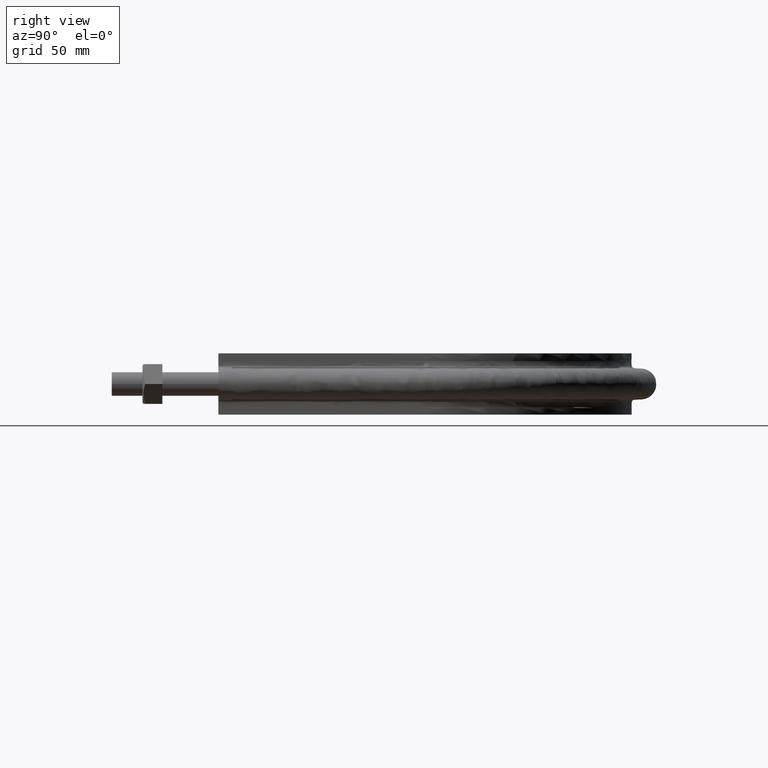
[diagram: clean part render]
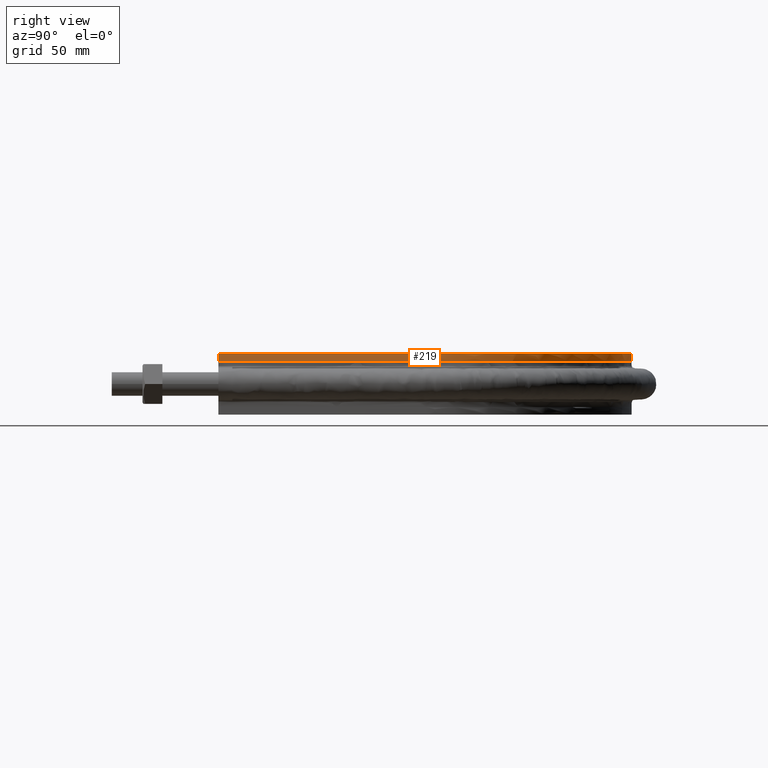
[diagram: same view with one face highlighted and labeled with its STEP entity id]
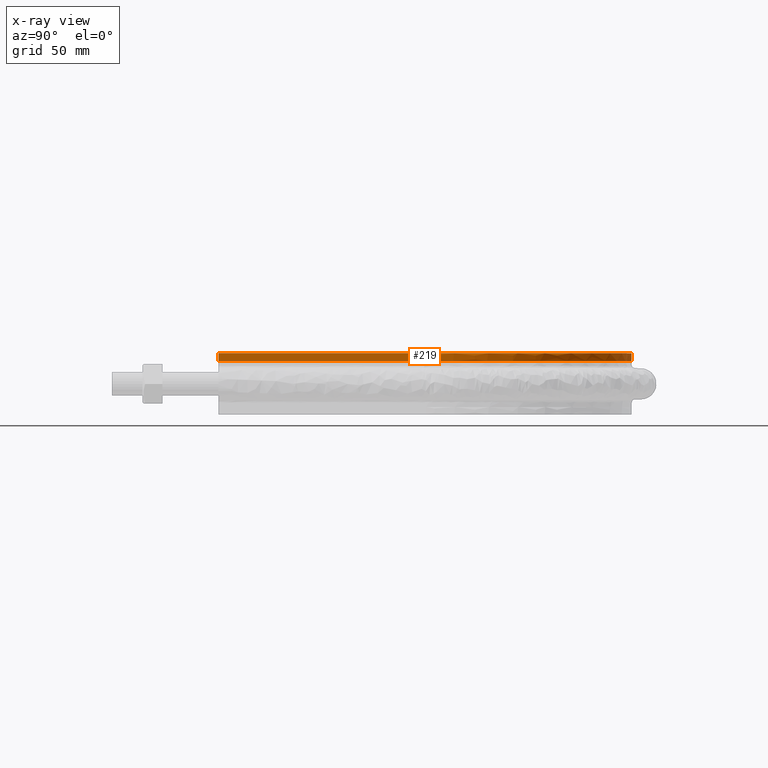
[diagram: x-ray of the same camera — body ghosted, the highlighted face saturated]
A machine part, right view. The second image highlights one B-rep face of the part: STEP entity #219.
The next image is the same camera in x-ray: the body ghosted, the highlighted face saturated — about 0% of this face is hidden behind the body in this view.
In plain terms, the highlighted face is a SurfaceOfExtrusion surface.
Its self-contained STEP definition (entity closure, byte-faithful):
#219 = ADVANCED_FACE( '', ( #260 ), #261, .F. );
#260 = FACE_OUTER_BOUND( '', #360, .T. );
#261 = SURFACE_OF_LINEAR_EXTRUSION( '', #361, #362 );
#360 = EDGE_LOOP( '', ( #1378, #1379, #1380, #1381 ) );
#361 = B_SPLINE_CURVE_WITH_KNOTS( '', 3, ( #1382, #1383, #1384, #1385, #1386, #1387, #1388, #1389, #1390, #1391, #1392, #1393, #1394, #1395, #1396, #1397, #1398, #1399, #1400, #1401, #1402, #1403, #1404, #1405, #1406, #1407, #1408, #1409, #1410, #1411, #1412, #1413, #1414, #1415, #1416, #1417, #1418, #1419, #1420, #1421, #1422, #1423, #1424, #1425, #1426, #1427, #1428, #1429, #1430, #1431, #1432, #1433, #1434, #1435, #1436, #1437, #1438, #1439, #1440, #1441, #1442, #1443, #1444, #1445, #1446, #1447, #1448, #1449, #1450, #1451, #1452, #1453, #1454, #1455, #1456, #1457, #1458, #1459, #1460, #1461, #1462, #1463, #1464, #1465, #1466, #1467, #1468, #1469, #1470, #1471, #1472, #1473, #1474 ), .UNSPECIFIED., .F., .F., ( 4, 1, 1, 2, 2, 2, 2, 2, 2, 2, 2, 2, 2, 2, 2, 2, 2, 2, 2, 2, 2, 2, 2, 2, 2, 2, 2, 2, 2, 2, 2, 2, 2, 2, 2, 2, 2, 2, 2, 2, 2, 2, 2, 2, 2, 2, 1, 4 ), ( 0.000000000000000, 0.124999999999998, 0.187499999999997, 0.191406249999997, 0.195312499999997, 0.203124999999997, 0.218749999999997, 0.249999999999997, 0.257812499999997, 0.265624999999997, 0.281249999999997, 0.312499999999998, 0.328124999999998, 0.343749999999998, 0.374999999999998, 0.390624999999999, 0.398437499999999, 0.406249999999999, 0.437499999999999, 0.453124999999999, 0.460937499999999, 0.468749999999999, 0.499999999999999, 0.515624999999999, 0.523437499999999, 0.531249999999999, 0.562499999999999, 0.578124999999999, 0.585937499999999, 0.593749999999999, 0.624999999999999, 0.656249999999999, 0.664062499999999, 0.671874999999999, 0.687499999999998, 0.718749999999998, 0.722656249999998, 0.726562499999998, 0.734374999999998, 0.749999999999998, 0.781249999999999, 0.789062499999999, 0.796874999999999, 0.804687499999999, 0.808593749999999, 0.812499999999999, 0.874999999999999, 1.00000000000000 ), .UNSPECIFIED. );
#362 = VECTOR( '', #1475, 1000.00000000000 );
#1378 = ORIENTED_EDGE( '', *, *, #1830, .F. );
#1379 = ORIENTED_EDGE( '', *, *, #1831, .T. );
#1380 = ORIENTED_EDGE( '', *, *, #1832, .T. );
#1381 = ORIENTED_EDGE( '', *, *, #1833, .F. );
#1382 = CARTESIAN_POINT( '', ( -136.950000000000, 69.5000000000001, 15.0000000000000 ) );
#1383 = CARTESIAN_POINT( '', ( -136.950000000000, 98.1083518142184, 15.0000000000000 ) );
#1384 = CARTESIAN_POINT( '', ( -136.950000000000, 141.020879535546, 15.0000000000000 ) );
#1385 = CARTESIAN_POINT( '', ( -136.950000000000, 184.827418251068, 15.0000000000000 ) );
#1386 = CARTESIAN_POINT( '', ( -136.950000000000, 200.025605152371, 15.0000000000000 ) );
#1387 = CARTESIAN_POINT( '', ( -136.950000000000, 201.813627140760, 15.0000000000000 ) );
#1388 = CARTESIAN_POINT( '', ( -136.951346114390, 202.707775042566, 15.0000000000000 ) );
#1389 = CARTESIAN_POINT( '', ( -136.920609614582, 205.386681945511, 15.0000000000000 ) );
#1390 = CARTESIAN_POINT( '', ( -136.864816667886, 207.169029468827, 15.0000000000000 ) );
#1391 = CARTESIAN_POINT( '', ( -136.593146380454, 212.505464995943, 15.0000000000000 ) );
#1392 = CARTESIAN_POINT( '', ( -136.273189661635, 216.048967525581, 15.0000000000000 ) );
#1393 = CARTESIAN_POINT( '', ( -134.901802697672, 226.637621477264, 15.0000000000000 ) );
#1394 = CARTESIAN_POINT( '', ( -133.442512350631, 233.641291170171, 15.0000000000000 ) );
#1395 = CARTESIAN_POINT( '', ( -130.901383601595, 242.322953634696, 15.0000000000000 ) );
#1396 = CARTESIAN_POINT( '', ( -130.357015832177, 244.055610275364, 15.0000000000000 ) );
#1397 = CARTESIAN_POINT( '', ( -129.193847954834, 247.513353357774, 15.0000000000000 ) );
#1398 = CARTESIAN_POINT( '', ( -128.573476846171, 249.242131151952, 15.0000000000000 ) );
#1399 = CARTESIAN_POINT( '', ( -126.618174555290, 254.362723165804, 15.0000000000000 ) );
#1400 = CARTESIAN_POINT( '', ( -125.184490197969, 257.702984774706, 15.0000000000000 ) );
#1401 = CARTESIAN_POINT( '', ( -120.505328593638, 267.510336023067, 15.0000000000000 ) );
#1402 = CARTESIAN_POINT( '', ( -116.886061102882, 273.766429658881, 15.0000000000000 ) );
#1403 = CARTESIAN_POINT( '', ( -110.711856714430, 282.729863608687, 15.0000000000000 ) );
#1404 = CARTESIAN_POINT( '', ( -108.528201325971, 285.647880339848, 15.0000000000000 ) );
#1405 = CARTESIAN_POINT( '', ( -103.904407759562, 291.334716161008, 15.0000000000000 ) );
#1406 = CARTESIAN_POINT( '', ( -101.494535344134, 294.066402872891, 15.0000000000000 ) );
#1407 = CARTESIAN_POINT( '', ( -93.9768857717453, 301.932991567949, 15.0000000000000 ) );
#1408 = CARTESIAN_POINT( '', ( -88.5810092968216, 306.739345713163, 15.0000000000000 ) );
#1409 = CARTESIAN_POINT( '', ( -79.9242816112255, 313.306932196036, 15.0000000000000 ) );
#1410 = CARTESIAN_POINT( '', ( -76.9444034133846, 315.388585548724, 15.0000000000000 ) );
#1411 = CARTESIAN_POINT( '', ( -72.3295994596737, 318.345723108324, 15.0000000000000 ) );
#1412 = CARTESIAN_POINT( '', ( -70.7649027135226, 319.304967513352, 15.0000000000000 ) );
#1413 = CARTESIAN_POINT( '', ( -67.6140063459487, 321.151291429897, 15.0000000000000 ) );
#1414 = CARTESIAN_POINT( '', ( -66.0248395654176, 322.040393152112, 15.0000000000000 ) );
#1415 = CARTESIAN_POINT( '', ( -58.0112237793686, 326.317614365293, 15.0000000000000 ) );
#1416 = CARTESIAN_POINT( '', ( -51.3838695117630, 329.201965048637, 15.0000000000000 ) );
#1417 = CARTESIAN_POINT( '', ( -41.1199306990074, 332.726783518545, 15.0000000000000 ) );
#1418 = CARTESIAN_POINT( '', ( -37.6449536795560, 333.768486983704, 15.0000000000000 ) );
#1419 = CARTESIAN_POINT( '', ( -32.3508572250091, 335.128370680882, 15.0000000000000 ) );
#1420 = CARTESIAN_POINT( '', ( -30.5711219683584, 335.548134877370, 15.0000000000000 ) );
#1421 = CARTESIAN_POINT( '', ( -26.9898806015869, 336.317593884025, 15.0000000000000 ) );
#1422 = CARTESIAN_POINT( '', ( -25.1975634552121, 336.665375332185, 15.0000000000000 ) );
#1423 = CARTESIAN_POINT( '', ( -16.2276412077909, 338.222717729931, 15.0000000000000 ) );
#1424 = CARTESIAN_POINT( '', ( -9.02523440856828, 338.892110978601, 15.0000000000000 ) );
#1425 = CARTESIAN_POINT( '', ( 1.81786937464339, 339.036051739121, 15.0000000000000 ) );
#1426 = CARTESIAN_POINT( '', ( 5.43888442946928, 338.939261125259, 15.0000000000000 ) );
#1427 = CARTESIAN_POINT( '', ( 10.8804397715047, 338.575567070277, 15.0000000000000 ) );
#1428 = CARTESIAN_POINT( '', ( 12.6959650568680, 338.417887683017, 15.0000000000000 ) );
#1429 = CARTESIAN_POINT( '', ( 16.3304010621799, 338.028795956680, 15.0000000000000 ) );
#1430 = CARTESIAN_POINT( '', ( 18.1509778757317, 337.796964222104, 15.0000000000000 ) );
#1431 = CARTESIAN_POINT( '', ( 27.1816143256265, 336.463826032725, 15.0000000000000 ) );
#1432 = CARTESIAN_POINT( '', ( 34.2390508622082, 334.839668956545, 15.0000000000000 ) );
#1433 = CARTESIAN_POINT( '', ( 44.5810778790178, 331.588595998648, 15.0000000000000 ) );
#1434 = CARTESIAN_POINT( '', ( 47.9874716560253, 330.368228980460, 15.0000000000000 ) );
#1435 = CARTESIAN_POINT( '', ( 53.0340989443385, 328.327522487613, 15.0000000000000 ) );
#1436 = CARTESIAN_POINT( '', ( 54.7057757971041, 327.612133002601, 15.0000000000000 ) );
#1437 = CARTESIAN_POINT( '', ( 58.0278931759396, 326.110472498892, 15.0000000000000 ) );
#1438 = CARTESIAN_POINT( '', ( 59.6804492387638, 325.323156348271, 15.0000000000000 ) );
#1439 = CARTESIAN_POINT( '', ( 67.8662269615203, 321.218943105620, 15.0000000000000 ) );
#1440 = CARTESIAN_POINT( '', ( 74.0672509269292, 317.457093171530, 15.0000000000000 ) );
#1441 = CARTESIAN_POINT( '', ( 85.8066697855649, 309.021264559786, 15.0000000000000 ) );
#1442 = CARTESIAN_POINT( '', ( 91.3450708111372, 304.347294323490, 15.0000000000000 ) );
#1443 = CARTESIAN_POINT( '', ( 97.8308624293468, 297.902999344752, 15.0000000000000 ) );
#1444 = CARTESIAN_POINT( '', ( 99.1063522438755, 296.583042958306, 15.0000000000000 ) );
#1445 = CARTESIAN_POINT( '', ( 101.590244963731, 293.906741637720, 15.0000000000000 ) );
#1446 = CARTESIAN_POINT( '', ( 102.801672903783, 292.547491271699, 15.0000000000000 ) );
#1447 = CARTESIAN_POINT( '', ( 106.346254323219, 288.407722078791, 15.0000000000000 ) );
#1448 = CARTESIAN_POINT( '', ( 108.589893323642, 285.565315081671, 15.0000000000000 ) );
#1449 = CARTESIAN_POINT( '', ( 114.970214089517, 276.795700236810, 15.0000000000000 ) );
#1450 = CARTESIAN_POINT( '', ( 118.759288976830, 270.628165305694, 15.0000000000000 ) );
#1451 = CARTESIAN_POINT( '', ( 122.482049801510, 263.316381079696, 15.0000000000000 ) );
#1452 = CARTESIAN_POINT( '', ( 122.888127373352, 262.498732064797, 15.0000000000000 ) );
#1453 = CARTESIAN_POINT( '', ( 123.684984798983, 260.852857558546, 15.0000000000000 ) );
#1454 = CARTESIAN_POINT( '', ( 124.076188679038, 260.023697389436, 15.0000000000000 ) );
#1455 = CARTESIAN_POINT( '', ( 125.223076035006, 257.527782870250, 15.0000000000000 ) );
#1456 = CARTESIAN_POINT( '', ( 125.951536386374, 255.853956327218, 15.0000000000000 ) );
#1457 = CARTESIAN_POINT( '', ( 128.029666807743, 250.803138776700, 15.0000000000000 ) );
#1458 = CARTESIAN_POINT( '', ( 129.272445179675, 247.396908032733, 15.0000000000000 ) );
#1459 = CARTESIAN_POINT( '', ( 132.586786070951, 237.064969568914, 15.0000000000000 ) );
#1460 = CARTESIAN_POINT( '', ( 134.247821790206, 230.026964115282, 15.0000000000000 ) );
#1461 = CARTESIAN_POINT( '', ( 135.630952375180, 221.039845429983, 15.0000000000000 ) );
#1462 = CARTESIAN_POINT( '', ( 135.872641992840, 219.232864972873, 15.0000000000000 ) );
#1463 = CARTESIAN_POINT( '', ( 136.284803757172, 215.599422844283, 15.0000000000000 ) );
#1464 = CARTESIAN_POINT( '', ( 136.455153129533, 213.772516640444, 15.0000000000000 ) );
#1465 = CARTESIAN_POINT( '', ( 136.721567786733, 210.123756924612, 15.0000000000000 ) );
#1466 = CARTESIAN_POINT( '', ( 136.818027802696, 208.298840221395, 15.0000000000000 ) );
#1467 = CARTESIAN_POINT( '', ( 136.907499245267, 205.560658472590, 15.0000000000000 ) );
#1468 = CARTESIAN_POINT( '', ( 136.928116262671, 204.647796719940, 15.0000000000000 ) );
#1469 = CARTESIAN_POINT( '', ( 136.950875956315, 202.821803321073, 15.0000000000000 ) );
#1470 = CARTESIAN_POINT( '', ( 136.950000000000, 201.908627575341, 15.0000000000000 ) );
#1471 = CARTESIAN_POINT( '', ( 136.950000000000, 186.384857445818, 15.0000000000000 ) );
#1472 = CARTESIAN_POINT( '', ( 136.950000000000, 142.553035903637, 15.0000000000000 ) );
#1473 = CARTESIAN_POINT( '', ( 136.950000000000, 98.7212143614548, 15.0000000000000 ) );
#1474 = CARTESIAN_POINT( '', ( 136.950000000000, 69.5000000000000, 15.0000000000000 ) );
#1475 = DIRECTION( '', ( 7.49830360911069E-032, 3.06151588455594E-016, 1.00000000000000 ) );
#1830 = EDGE_CURVE( '', #1902, #1903, #1904, .T. );
#1831 = EDGE_CURVE( '', #1902, #1905, #1906, .T. );
#1832 = EDGE_CURVE( '', #1905, #1907, #1908, .T. );
#1833 = EDGE_CURVE( '', #1903, #1907, #1909, .T. );
#1902 = VERTEX_POINT( '', #2028 );
#1903 = VERTEX_POINT( '', #2029 );
#1904 = B_SPLINE_CURVE_WITH_KNOTS( '', 3, ( #2030, #2031, #2032, #2033, #2034, #2035, #2036, #2037, #2038, #2039, #2040, #2041, #2042, #2043, #2044, #2045, #2046 ), .UNSPECIFIED., .F., .F., ( 4, 3, 1, 1, 1, 1, 1, 1, 1, 3, 4 ), ( 0.000000000000000, 0.100000000000000, 0.200000000000000, 0.300000000000000, 0.400000000000000, 0.500000000000000, 0.600000000000000, 0.700000000000000, 0.800000000000000, 0.900000000000000, 1.00000000000000 ), .UNSPECIFIED. );
#1905 = VERTEX_POINT( '', #2047 );
#1906 = LINE( '', #2048, #2049 );
#1907 = VERTEX_POINT( '', #2050 );
#1908 = B_SPLINE_CURVE_WITH_KNOTS( '', 3, ( #2051, #2052, #2053, #2054, #2055, #2056, #2057, #2058, #2059, #2060, #2061, #2062, #2063, #2064, #2065, #2066, #2067, #2068, #2069, #2070, #2071, #2072, #2073, #2074, #2075, #2076, #2077, #2078, #2079, #2080, #2081, #2082, #2083, #2084, #2085, #2086, #2087, #2088, #2089, #2090, #2091, #2092, #2093, #2094, #2095, #2096, #2097, #2098, #2099, #2100, #2101, #2102, #2103, #2104, #2105, #2106, #2107, #2108, #2109, #2110, #2111, #2112, #2113, #2114, #2115, #2116, #2117, #2118, #2119, #2120, #2121, #2122, #2123, #2124, #2125, #2126, #2127, #2128, #2129, #2130, #2131, #2132, #2133, #2134, #2135, #2136, #2137, #2138, #2139, #2140, #2141, #2142, #2143, #2144, #2145, #2146, #2147, #2148, #2149, #2150, #2151, #2152, #2153, #2154, #2155, #2156, #2157 ), .UNSPECIFIED., .F., .F., ( 4, 1, 2, 2, 2, 2, 2, 2, 2, 2, 2, 2, 2, 2, 2, 2, 2, 2, 2, 2, 2, 2, 2, 2, 2, 2, 2, 2, 2, 2, 2, 2, 2, 2, 2, 1, 2, 2, 2, 2, 2, 2, 2, 2, 2, 2, 2, 2, 2, 2, 2, 2, 2, 1, 4 ), ( 1.38777878078145E-017, 0.0874256844655848, 0.131138526698377, 0.133870579337927, 0.136602631977476, 0.142066737256575, 0.152994947814773, 0.174851368931169, 0.180315474210268, 0.183047526849818, 0.185779579489367, 0.196707790047565, 0.218564211163961, 0.229492421722159, 0.232224474361709, 0.234956527001258, 0.240420632280357, 0.262277053396753, 0.273205263954951, 0.275937316594500, 0.278669369234049, 0.284133474513148, 0.305989895629544, 0.316918106187742, 0.322382211466840, 0.325114264106390, 0.327846316745939, 0.349702737862335, 0.360630948420533, 0.366095053699632, 0.368827106339181, 0.371559158978731, 0.393415580095126, 0.415272001211522, 0.418004053851071, 0.420736106490621, 0.426200211769720, 0.437128422327918, 0.458984843444314, 0.461716896083863, 0.464448948723413, 0.469913054002512, 0.480841264560710, 0.502697685677107, 0.508161790956206, 0.513625896235305, 0.524554106793504, 0.546410527909901, 0.551874633189000, 0.557338738468099, 0.562802843747198, 0.565534896386748, 0.568266949026298, 0.611979791259092, 0.699405475724679 ), .UNSPECIFIED. );
#1909 = LINE( '', #2158, #2159 );
#2028 = CARTESIAN_POINT( '', ( -136.950000000000, 69.5000000000001, 15.0000000000000 ) );
#2029 = CARTESIAN_POINT( '', ( 136.950000000000, 69.5000000000001, 15.0000000000000 ) );
#2030 = CARTESIAN_POINT( '', ( -136.950000000000, 69.5000000000001, 15.0000000000000 ) );
#2031 = CARTESIAN_POINT( '', ( -136.950000000000, 113.683333333333, 15.0000000000000 ) );
#2032 = CARTESIAN_POINT( '', ( -136.950000000000, 157.866666666667, 15.0000000000000 ) );
#2033 = CARTESIAN_POINT( '', ( -136.950000000000, 202.050000000000, 15.0000000000000 ) );
#2034 = CARTESIAN_POINT( '', ( -136.950000000000, 219.963857435017, 15.0000000000000 ) );
#2035 = CARTESIAN_POINT( '', ( -129.819269813161, 255.827750890366, 15.0000000000000 ) );
#2036 = CARTESIAN_POINT( '', ( -99.3593675184604, 301.408062105588, 15.0000000000000 ) );
#2037 = CARTESIAN_POINT( '', ( -53.7729022139835, 331.869642788267, 15.0000000000000 ) );
#2038 = CARTESIAN_POINT( '', ( 8.51077304988068E-014, 342.565178605866, 15.0000000000000 ) );
#2039 = CARTESIAN_POINT( '', ( 53.7729022139835, 331.869642788268, 15.0000000000000 ) );
#2040 = CARTESIAN_POINT( '', ( 99.3593675184605, 301.408062105588, 15.0000000000000 ) );
#2041 = CARTESIAN_POINT( '', ( 129.819269813161, 255.827750890366, 15.0000000000000 ) );
#2042 = CARTESIAN_POINT( '', ( 136.950000000000, 219.963857435017, 15.0000000000000 ) );
#2043 = CARTESIAN_POINT( '', ( 136.950000000000, 202.050000000000, 15.0000000000000 ) );
#2044 = CARTESIAN_POINT( '', ( 136.950000000000, 157.866666666667, 15.0000000000000 ) );
#2045 = CARTESIAN_POINT( '', ( 136.950000000000, 113.683333333333, 15.0000000000000 ) );
#2046 = CARTESIAN_POINT( '', ( 136.950000000000, 69.5000000000000, 15.0000000000000 ) );
#2047 = CARTESIAN_POINT( '', ( -136.950000000000, 69.5000000000001, 20.0000000000000 ) );
#2048 = CARTESIAN_POINT( '', ( -136.950000000000, 69.5000000000001, 15.0000000000000 ) );
#2049 = VECTOR( '', #2774, 1000.00000000000 );
#2050 = CARTESIAN_POINT( '', ( 136.950000000000, 69.5000000000000, 20.0000000000000 ) );
#2051 = CARTESIAN_POINT( '', ( -136.950000000000, 69.5000000000001, 20.0000000000000 ) );
#2052 = CARTESIAN_POINT( '', ( -136.950000000000, 98.6419002480978, 20.0000000000000 ) );
#2053 = CARTESIAN_POINT( '', ( -136.950000000000, 142.354750620244, 20.0000000000000 ) );
#2054 = CARTESIAN_POINT( '', ( -136.950000000000, 186.067600992391, 20.0000000000000 ) );
#2055 = CARTESIAN_POINT( '', ( -136.950000000000, 201.549235499193, 20.0000000000000 ) );
#2056 = CARTESIAN_POINT( '', ( -136.952005766823, 202.459921105958, 20.0000000000000 ) );
#2057 = CARTESIAN_POINT( '', ( -136.934979206279, 204.281279481061, 20.0000000000000 ) );
#2058 = CARTESIAN_POINT( '', ( -136.916553871832, 205.191952619814, 20.0000000000000 ) );
#2059 = CARTESIAN_POINT( '', ( -136.834753701177, 207.923955849786, 20.0000000000000 ) );
#2060 = CARTESIAN_POINT( '', ( -136.743599783762, 209.741272047873, 20.0000000000000 ) );
#2061 = CARTESIAN_POINT( '', ( -136.363495553161, 215.166484778746, 20.0000000000000 ) );
#2062 = CARTESIAN_POINT( '', ( -135.967488703048, 218.753870458486, 20.0000000000000 ) );
#2063 = CARTESIAN_POINT( '', ( -134.367551969831, 229.431038801512, 20.0000000000000 ) );
#2064 = CARTESIAN_POINT( '', ( -132.750553866294, 236.435595074198, 20.0000000000000 ) );
#2065 = CARTESIAN_POINT( '', ( -130.033489035347, 245.047725779317, 20.0000000000000 ) );
#2066 = CARTESIAN_POINT( '', ( -129.454886141075, 246.762891350761, 20.0000000000000 ) );
#2067 = CARTESIAN_POINT( '', ( -128.533317502651, 249.324567410150, 20.0000000000000 ) );
#2068 = CARTESIAN_POINT( '', ( -128.217212893147, 250.176620027555, 20.0000000000000 ) );
#2069 = CARTESIAN_POINT( '', ( -127.566740219217, 251.876957051049, 20.0000000000000 ) );
#2070 = CARTESIAN_POINT( '', ( -127.232398800355, 252.725180838086, 20.0000000000000 ) );
#2071 = CARTESIAN_POINT( '', ( -125.522807242115, 256.937555990544, 20.0000000000000 ) );
#2072 = CARTESIAN_POINT( '', ( -124.027890382199, 260.231015655093, 20.0000000000000 ) );
#2073 = CARTESIAN_POINT( '', ( -119.177772488661, 269.891903517815, 20.0000000000000 ) );
#2074 = CARTESIAN_POINT( '', ( -115.456951462214, 276.039688790403, 20.0000000000000 ) );
#2075 = CARTESIAN_POINT( '', ( -109.152951019669, 284.827169774979, 20.0000000000000 ) );
#2076 = CARTESIAN_POINT( '', ( -106.930050833051, 287.683299996961, 20.0000000000000 ) );
#2077 = CARTESIAN_POINT( '', ( -103.994442146732, 291.159156375520, 20.0000000000000 ) );
#2078 = CARTESIAN_POINT( '', ( -103.399206220779, 291.849830869778, 20.0000000000000 ) );
#2079 = CARTESIAN_POINT( '', ( -102.198265091274, 293.215468669278, 20.0000000000000 ) );
#2080 = CARTESIAN_POINT( '', ( -101.591920700928, 293.891203542521, 20.0000000000000 ) );
#2081 = CARTESIAN_POINT( '', ( -99.7553846231874, 295.897299082132, 20.0000000000000 ) );
#2082 = CARTESIAN_POINT( '', ( -98.5077032633103, 297.206566629289, 20.0000000000000 ) );
#2083 = CARTESIAN_POINT( '', ( -92.1539858602963, 303.613835991371, 20.0000000000000 ) );
#2084 = CARTESIAN_POINT( '', ( -86.7024715106574, 308.295179626362, 20.0000000000000 ) );
#2085 = CARTESIAN_POINT( '', ( -77.9891669345021, 314.670721620165, 20.0000000000000 ) );
#2086 = CARTESIAN_POINT( '', ( -74.9946413234015, 316.687249879651, 20.0000000000000 ) );
#2087 = CARTESIAN_POINT( '', ( -71.1363767592659, 319.069086719335, 20.0000000000000 ) );
#2088 = CARTESIAN_POINT( '', ( -70.3589796436298, 319.538526390098, 20.0000000000000 ) );
#2089 = CARTESIAN_POINT( '', ( -68.7925101038773, 320.463324926288, 20.0000000000000 ) );
#2090 = CARTESIAN_POINT( '', ( -68.0028416365612, 320.918994503192, 20.0000000000000 ) );
#2091 = CARTESIAN_POINT( '', ( -65.6265150792850, 322.258978990775, 20.0000000000000 ) );
#2092 = CARTESIAN_POINT( '', ( -64.0295971988689, 323.118030590872, 20.0000000000000 ) );
#2093 = CARTESIAN_POINT( '', ( -55.9824089667626, 327.244365806941, 20.0000000000000 ) );
#2094 = CARTESIAN_POINT( '', ( -49.3439512001477, 330.003826159949, 20.0000000000000 ) );
#2095 = CARTESIAN_POINT( '', ( -39.0910082444920, 333.346268295591, 20.0000000000000 ) );
#2096 = CARTESIAN_POINT( '', ( -35.6241551653227, 334.327634953128, 20.0000000000000 ) );
#2097 = CARTESIAN_POINT( '', ( -30.3492784457162, 335.598384851550, 20.0000000000000 ) );
#2098 = CARTESIAN_POINT( '', ( -28.5785337099308, 335.988365122305, 20.0000000000000 ) );
#2099 = CARTESIAN_POINT( '', ( -25.9034309357533, 336.522102744638, 20.0000000000000 ) );
#2100 = CARTESIAN_POINT( '', ( -25.0077107435981, 336.691611247169, 20.0000000000000 ) );
#2101 = CARTESIAN_POINT( '', ( -23.2172138820022, 337.012112274078, 20.0000000000000 ) );
#2102 = CARTESIAN_POINT( '', ( -22.3218036874147, 337.163270419116, 20.0000000000000 ) );
#2103 = CARTESIAN_POINT( '', ( -14.2616746941611, 338.442909678169, 20.0000000000000 ) );
#2104 = CARTESIAN_POINT( '', ( -7.08688203430848, 339.005162357812, 20.0000000000000 ) );
#2105 = CARTESIAN_POINT( '', ( 3.69045053045534, 338.997356057589, 20.0000000000000 ) );
#2106 = CARTESIAN_POINT( '', ( 7.28543714269633, 338.851850186394, 20.0000000000000 ) );
#2107 = CARTESIAN_POINT( '', ( 12.6817359396804, 338.418941046074, 20.0000000000000 ) );
#2108 = CARTESIAN_POINT( '', ( 14.4811397915418, 338.238800753867, 20.0000000000000 ) );
#2109 = CARTESIAN_POINT( '', ( 17.1812121944278, 337.914258555030, 20.0000000000000 ) );
#2110 = CARTESIAN_POINT( '', ( 18.0813968219254, 337.797056870436, 20.0000000000000 ) );
#2111 = CARTESIAN_POINT( '', ( 19.8820902819517, 337.544430686409, 20.0000000000000 ) );
#2112 = CARTESIAN_POINT( '', ( 20.7835449490466, 337.408813108140, 20.0000000000000 ) );
#2113 = CARTESIAN_POINT( '', ( 28.8670965883877, 336.111328549363, 20.0000000000000 ) );
#2114 = CARTESIAN_POINT( '', ( 35.8703135521035, 334.406800400230, 20.0000000000000 ) );
#2115 = CARTESIAN_POINT( '', ( 49.5251538415603, 329.933849723641, 20.0000000000000 ) );
#2116 = CARTESIAN_POINT( '', ( 56.1748232267896, 327.159514727639, 20.0000000000000 ) );
#2117 = CARTESIAN_POINT( '', ( 63.4492399728143, 323.413652350476, 20.0000000000000 ) );
#2118 = CARTESIAN_POINT( '', ( 64.2555412528565, 322.988297906808, 20.0000000000000 ) );
#2119 = CARTESIAN_POINT( '', ( 65.8566175141692, 322.123190874313, 20.0000000000000 ) );
#2120 = CARTESIAN_POINT( '', ( 68.2414579243054, 320.803750954357, 20.0000000000000 ) );
#2121 = CARTESIAN_POINT( '', ( 70.5763589403808, 319.419469626307, 20.0000000000000 ) );
#2122 = CARTESIAN_POINT( '', ( 75.1805857318986, 316.565763947973, 20.0000000000000 ) );
#2123 = CARTESIAN_POINT( '', ( 78.1627035340866, 314.549856366448, 20.0000000000000 ) );
#2124 = CARTESIAN_POINT( '', ( 86.8543207620446, 308.171383663363, 20.0000000000000 ) );
#2125 = CARTESIAN_POINT( '', ( 92.3077229888429, 303.476301431760, 20.0000000000000 ) );
#2126 = CARTESIAN_POINT( '', ( 98.0418417248447, 297.673728261722, 20.0000000000000 ) );
#2127 = CARTESIAN_POINT( '', ( 98.6733697505328, 297.021731690659, 20.0000000000000 ) );
#2128 = CARTESIAN_POINT( '', ( 99.9251833237795, 295.703141292675, 20.0000000000000 ) );
#2129 = CARTESIAN_POINT( '', ( 100.546136743140, 295.035752086233, 20.0000000000000 ) );
#2130 = CARTESIAN_POINT( '', ( 102.386046552861, 293.018007311464, 20.0000000000000 ) );
#2131 = CARTESIAN_POINT( '', ( 103.581668710419, 291.652670943034, 20.0000000000000 ) );
#2132 = CARTESIAN_POINT( '', ( 107.077810366198, 287.497593093914, 20.0000000000000 ) );
#2133 = CARTESIAN_POINT( '', ( 109.287409665407, 284.648655660805, 20.0000000000000 ) );
#2134 = CARTESIAN_POINT( '', ( 115.563663674955, 275.872310524423, 20.0000000000000 ) );
#2135 = CARTESIAN_POINT( '', ( 119.278439319533, 269.715802833902, 20.0000000000000 ) );
#2136 = CARTESIAN_POINT( '', ( 123.322162063999, 261.629687512515, 20.0000000000000 ) );
#2137 = CARTESIAN_POINT( '', ( 124.100657851931, 259.992770208298, 20.0000000000000 ) );
#2138 = CARTESIAN_POINT( '', ( 125.595826737253, 256.678684334607, 20.0000000000000 ) );
#2139 = CARTESIAN_POINT( '', ( 126.312684101757, 255.000403133008, 20.0000000000000 ) );
#2140 = CARTESIAN_POINT( '', ( 128.350441665648, 249.950404789000, 20.0000000000000 ) );
#2141 = CARTESIAN_POINT( '', ( 129.565681668818, 246.548771227831, 20.0000000000000 ) );
#2142 = CARTESIAN_POINT( '', ( 132.799201309553, 236.243261059042, 20.0000000000000 ) );
#2143 = CARTESIAN_POINT( '', ( 134.406489655849, 229.239070076659, 20.0000000000000 ) );
#2144 = CARTESIAN_POINT( '', ( 135.730368078419, 220.316580552518, 20.0000000000000 ) );
#2145 = CARTESIAN_POINT( '', ( 135.960596827439, 218.523650463583, 20.0000000000000 ) );
#2146 = CARTESIAN_POINT( '', ( 136.350715609652, 214.920622076923, 20.0000000000000 ) );
#2147 = CARTESIAN_POINT( '', ( 136.510773884774, 213.109390090213, 20.0000000000000 ) );
#2148 = CARTESIAN_POINT( '', ( 136.758613068843, 209.474281669828, 20.0000000000000 ) );
#2149 = CARTESIAN_POINT( '', ( 136.846031799770, 207.656639207715, 20.0000000000000 ) );
#2150 = CARTESIAN_POINT( '', ( 136.922369077726, 204.930043041096, 20.0000000000000 ) );
#2151 = CARTESIAN_POINT( '', ( 136.939052762000, 204.021156467245, 20.0000000000000 ) );
#2152 = CARTESIAN_POINT( '', ( 136.951967908155, 202.203333870081, 20.0000000000000 ) );
#2153 = CARTESIAN_POINT( '', ( 136.950000000000, 201.294402200339, 20.0000000000000 ) );
#2154 = CARTESIAN_POINT( '', ( 136.950000000000, 185.842644700989, 20.0000000000000 ) );
#2155 = CARTESIAN_POINT( '', ( 136.950000000000, 142.214152938118, 20.0000000000000 ) );
#2156 = CARTESIAN_POINT( '', ( 136.950000000000, 98.5856611752475, 20.0000000000000 ) );
#2157 = CARTESIAN_POINT( '', ( 136.950000000000, 69.5000000000000, 20.0000000000000 ) );
#2158 = CARTESIAN_POINT( '', ( 136.950000000000, 69.5000000000000, 15.0000000000000 ) );
#2159 = VECTOR( '', #2775, 1000.00000000000 );
#2774 = DIRECTION( '', ( 7.49830360911069E-032, 3.06151588455594E-016, 1.00000000000000 ) );
#2775 = DIRECTION( '', ( 7.49830360911069E-032, 3.06151588455594E-016, 1.00000000000000 ) );